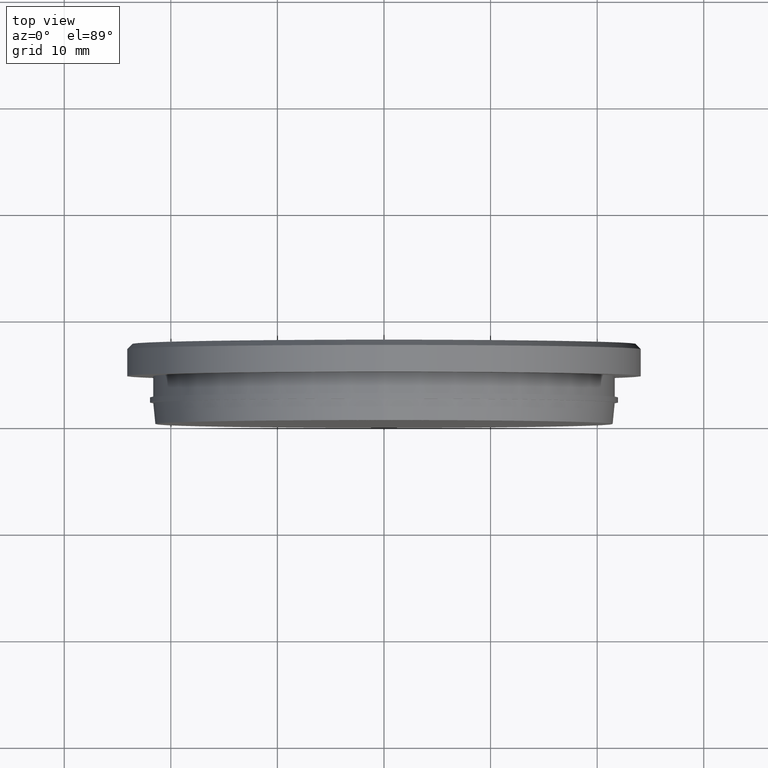
[diagram: clean part render]
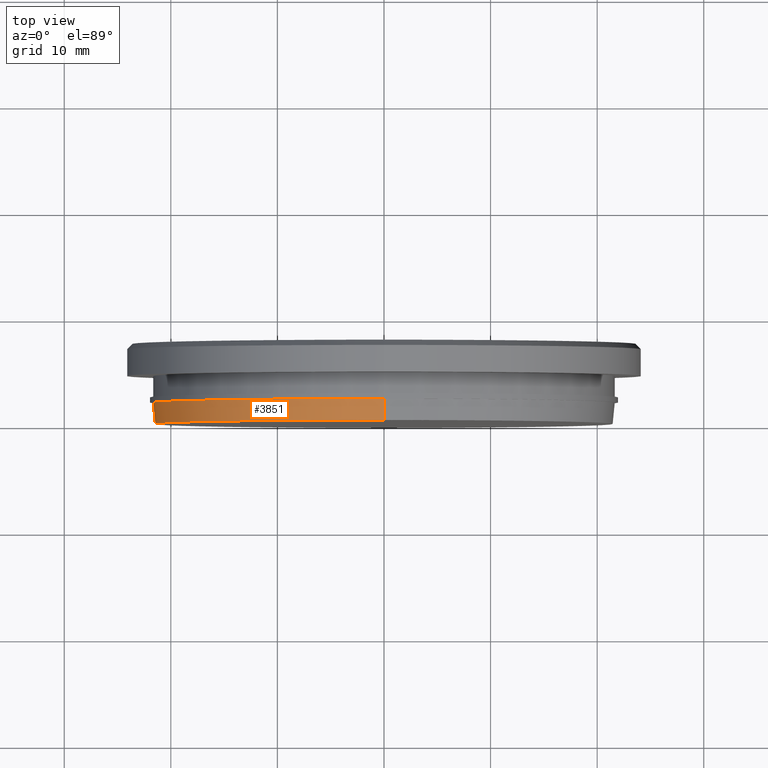
[diagram: same view with one face highlighted and labeled with its STEP entity id]
A machine part, top view. The second image highlights one B-rep face of the part: STEP entity #3851.
In plain terms, the highlighted conical surface has half-angle 5.711 deg.
Its self-contained STEP definition (entity closure, byte-faithful):
#283 = VERTEX_POINT ( 'NONE', #14018 ) ;
#958 = EDGE_LOOP ( 'NONE', ( #7735, #6961, #13735, #13822 ) ) ;
#1169 = VERTEX_POINT ( 'NONE', #8503 ) ;
#1489 = EDGE_CURVE ( 'NONE', #283, #11553, #10907, .T. ) ;
#2552 = CARTESIAN_POINT ( 'NONE',  ( 0.0000000000000000000, 2.000000000000000000, 0.0000000000000000000 ) ) ;
#2695 = CARTESIAN_POINT ( 'NONE',  ( 0.0000000000000000000, 2.000000000000000000, 21.65000000000000200 ) ) ;
#2748 = EDGE_CURVE ( 'NONE', #1169, #12086, #4537, .T. ) ;
#3182 = CIRCLE ( 'NONE', #9032, 21.45000000000000300 ) ;
#3851 = ADVANCED_FACE ( 'NONE', ( #11090 ), #14465, .T. ) ;
#4234 = AXIS2_PLACEMENT_3D ( 'NONE', #2552, #10803, #10973 ) ;
#4326 = CIRCLE ( 'NONE', #13639, 21.65000000000000200 ) ;
#4537 = LINE ( 'NONE', #10869, #9356 ) ;
#5232 = DIRECTION ( 'NONE',  ( 0.0000000000000000000, 0.9950371902099891500, 0.09950371902099831900 ) ) ;
#6961 = ORIENTED_EDGE ( 'NONE', *, *, #8226, .T. ) ;
#7112 = DIRECTION ( 'NONE',  ( 0.0000000000000000000, 0.0000000000000000000, 1.000000000000000000 ) ) ;
#7735 = ORIENTED_EDGE ( 'NONE', *, *, #2748, .F. ) ;
#7977 = EDGE_CURVE ( 'NONE', #11553, #12086, #4326, .T. ) ;
#8226 = EDGE_CURVE ( 'NONE', #1169, #283, #3182, .T. ) ;
#8503 = CARTESIAN_POINT ( 'NONE',  ( 2.639113852162546700E-015, 0.0000000000000000000, -21.45000000000000300 ) ) ;
#8716 = CARTESIAN_POINT ( 'NONE',  ( 0.0000000000000000000, 2.000000000000000000, 21.65000000000000200 ) ) ;
#9032 = AXIS2_PLACEMENT_3D ( 'NONE', #14175, #14275, #7112 ) ;
#9356 = VECTOR ( 'NONE', #13288, 1000.000000000000200 ) ;
#9708 = CARTESIAN_POINT ( 'NONE',  ( 2.651360320154019700E-015, 2.000000000000000000, -21.65000000000000200 ) ) ;
#10803 = DIRECTION ( 'NONE',  ( 0.0000000000000000000, 1.000000000000000000, 0.0000000000000000000 ) ) ;
#10869 = CARTESIAN_POINT ( 'NONE',  ( 2.651360320154019700E-015, 2.000000000000000000, -21.65000000000000200 ) ) ;
#10907 = LINE ( 'NONE', #8716, #11685 ) ;
#10973 = DIRECTION ( 'NONE',  ( 0.0000000000000000000, 0.0000000000000000000, 1.000000000000000000 ) ) ;
#11090 = FACE_OUTER_BOUND ( 'NONE', #958, .T. ) ;
#11553 = VERTEX_POINT ( 'NONE', #2695 ) ;
#11685 = VECTOR ( 'NONE', #5232, 1000.000000000000200 ) ;
#12086 = VERTEX_POINT ( 'NONE', #9708 ) ;
#12598 = CARTESIAN_POINT ( 'NONE',  ( 0.0000000000000000000, 2.000000000000000000, 0.0000000000000000000 ) ) ;
#13288 = DIRECTION ( 'NONE',  ( 1.218569110023232000E-017, 0.9950371902099891500, -0.09950371902099831900 ) ) ;
#13639 = AXIS2_PLACEMENT_3D ( 'NONE', #12598, #14680, #14621 ) ;
#13735 = ORIENTED_EDGE ( 'NONE', *, *, #1489, .T. ) ;
#13822 = ORIENTED_EDGE ( 'NONE', *, *, #7977, .T. ) ;
#14018 = CARTESIAN_POINT ( 'NONE',  ( 0.0000000000000000000, 0.0000000000000000000, 21.45000000000000300 ) ) ;
#14175 = CARTESIAN_POINT ( 'NONE',  ( 0.0000000000000000000, 0.0000000000000000000, 0.0000000000000000000 ) ) ;
#14275 = DIRECTION ( 'NONE',  ( 0.0000000000000000000, 1.000000000000000000, 0.0000000000000000000 ) ) ;
#14465 = CONICAL_SURFACE ( 'NONE', #4234, 21.65000000000000200, 0.09966865249116142700 ) ;
#14621 = DIRECTION ( 'NONE',  ( 0.0000000000000000000, 0.0000000000000000000, 1.000000000000000000 ) ) ;
#14680 = DIRECTION ( 'NONE',  ( -0.0000000000000000000, -1.000000000000000000, -0.0000000000000000000 ) ) ;